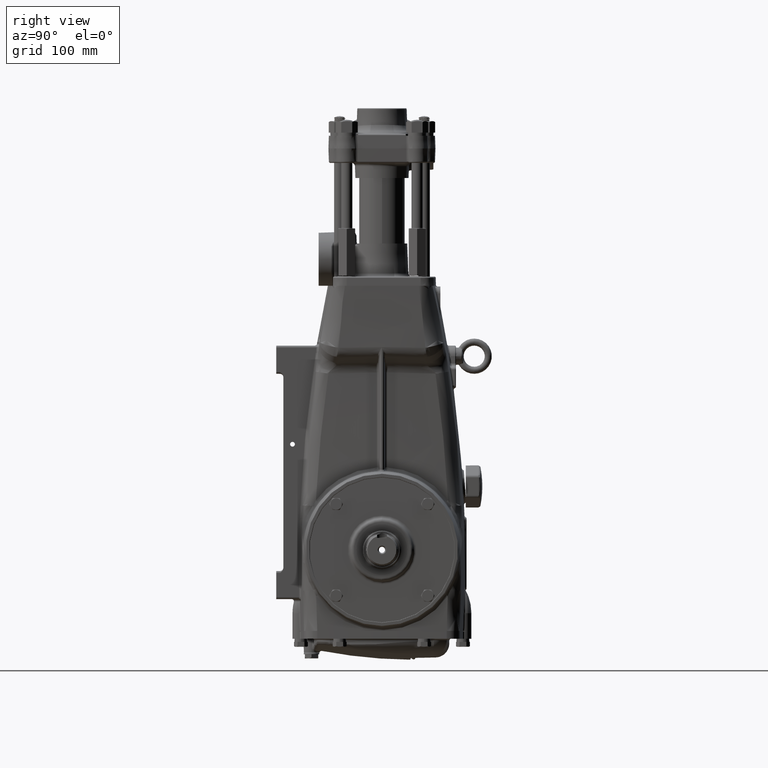
[diagram: clean part render]
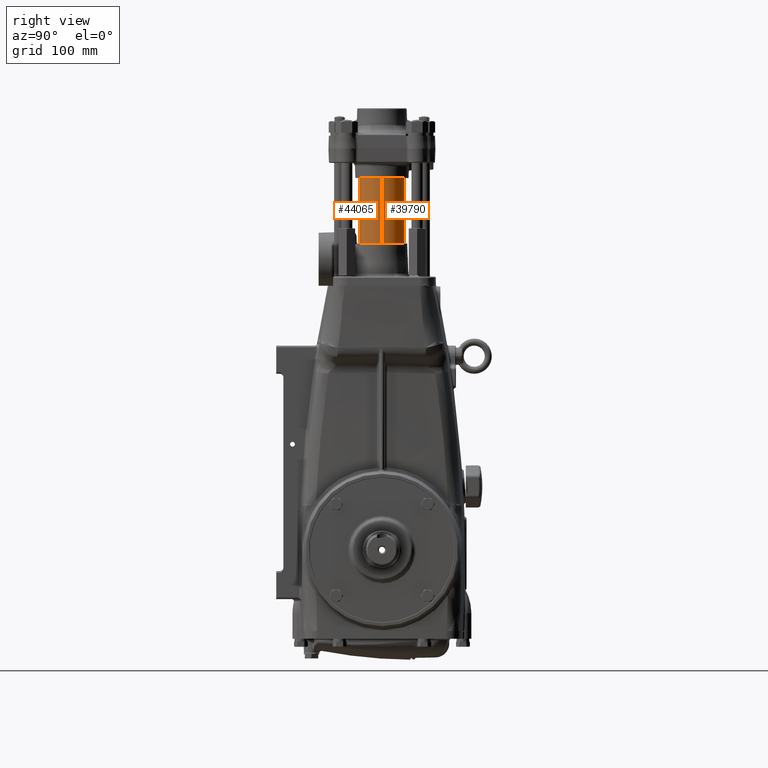
[diagram: same view with one multi-face feature highlighted, each face labeled with its STEP entity id]
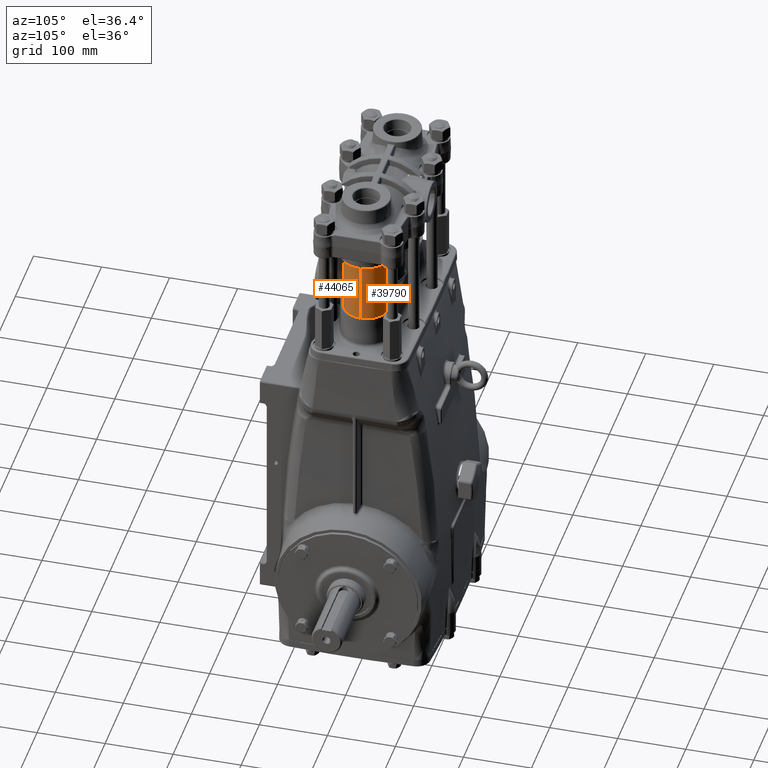
[diagram: same view with one multi-face feature highlighted, each face labeled with its STEP entity id]
A machine part, right view. The highlighted faces form ONE feature: a constant-radius fillet chain: 2 tangent blend faces with common blend radius 32.5 mm. The faces share edges in the B-rep.
A second angle (auxiliary view) of the same feature is appended — it is thin or edge-on in the first view.
Their STEP definitions:
[1] entity #44065 (Cylinder):
#122 = CARTESIAN_POINT ( 'NONE',  ( 2.066929133858270262, 3.743654304219419684E-16, 23.36719875226048515 ) ) ;
#1513 = CIRCLE ( 'NONE', #65875, 1.279527559055118280 ) ;
#1820 = FACE_OUTER_BOUND ( 'NONE', #38703, .T. ) ;
#10456 = CYLINDRICAL_SURFACE ( 'NONE', #32291, 1.279527559055118280 ) ;
#12221 = EDGE_CURVE ( 'NONE', #40531, #40269, #1513, .T. ) ;
#13345 = VERTEX_POINT ( 'NONE', #101584 ) ;
#15720 = EDGE_CURVE ( 'NONE', #40531, #13345, #106144, .T. ) ;
#17967 = CARTESIAN_POINT ( 'NONE',  ( 3.346456692913388320, 2.176684974601743516E-16, 23.36719875226048515 ) ) ;
#24289 = ORIENTED_EDGE ( 'NONE', *, *, #89289, .F. ) ;
#32291 = AXIS2_PLACEMENT_3D ( 'NONE', #17967, #53632, #98048 ) ;
#38264 = AXIS2_PLACEMENT_3D ( 'NONE', #73674, #74238, #64435 ) ;
#38703 = EDGE_LOOP ( 'NONE', ( #39605, #99125, #100555, #24289 ) ) ;
#39336 = CARTESIAN_POINT ( 'NONE',  ( 4.625984251968506378, 2.176684974601743516E-16, 17.02737007874015518 ) ) ;
#39605 = ORIENTED_EDGE ( 'NONE', *, *, #15720, .F. ) ;
#40269 = VERTEX_POINT ( 'NONE', #39336 ) ;
#40531 = VERTEX_POINT ( 'NONE', #100638 ) ;
#41429 = VECTOR ( 'NONE', #67957, 39.37007874015748143 ) ;
#42569 = CARTESIAN_POINT ( 'NONE',  ( 3.346456692913388320, 2.176684974601743516E-16, 17.02737007874015518 ) ) ;
#43170 = EDGE_CURVE ( 'NONE', #40269, #45601, #65686, .T. ) ;
#44065 = ADVANCED_FACE ( 'NONE', ( #1820 ), #10456, .T. ) ;
#45601 = VERTEX_POINT ( 'NONE', #79504 ) ;
#53632 = DIRECTION ( 'NONE',  ( -0.000000000000000000, -0.000000000000000000, 1.000000000000000000 ) ) ;
#59273 = DIRECTION ( 'NONE',  ( -0.000000000000000000, -0.000000000000000000, 1.000000000000000000 ) ) ;
#61718 = DIRECTION ( 'NONE',  ( -0.000000000000000000, -0.000000000000000000, 1.000000000000000000 ) ) ;
#62124 = CIRCLE ( 'NONE', #38264, 1.279527559055118280 ) ;
#64435 = DIRECTION ( 'NONE',  ( 1.000000000000000000, 0.000000000000000000, 0.000000000000000000 ) ) ;
#65686 = LINE ( 'NONE', #111784, #41429 ) ;
#65875 = AXIS2_PLACEMENT_3D ( 'NONE', #42569, #59273, #111773 ) ;
#67957 = DIRECTION ( 'NONE',  ( -0.000000000000000000, -0.000000000000000000, 1.000000000000000000 ) ) ;
#73674 = CARTESIAN_POINT ( 'NONE',  ( 3.346456692913388320, 2.176684974601743516E-16, 20.84626771653543287 ) ) ;
#74238 = DIRECTION ( 'NONE',  ( -0.000000000000000000, -0.000000000000000000, 1.000000000000000000 ) ) ;
#79504 = CARTESIAN_POINT ( 'NONE',  ( 4.625984251968506378, 2.176684974601743516E-16, 20.84626771653543287 ) ) ;
#89289 = EDGE_CURVE ( 'NONE', #13345, #45601, #62124, .T. ) ;
#98048 = DIRECTION ( 'NONE',  ( 1.000000000000000000, 0.000000000000000000, 0.000000000000000000 ) ) ;
#99125 = ORIENTED_EDGE ( 'NONE', *, *, #12221, .T. ) ;
#100555 = ORIENTED_EDGE ( 'NONE', *, *, #43170, .T. ) ;
#100638 = CARTESIAN_POINT ( 'NONE',  ( 2.066929133858270262, 3.743654304219419684E-16, 17.02737007874015518 ) ) ;
#101584 = CARTESIAN_POINT ( 'NONE',  ( 2.066929133858270262, 3.743654304219419684E-16, 20.84626771653543287 ) ) ;
#106144 = LINE ( 'NONE', #122, #106521 ) ;
#106521 = VECTOR ( 'NONE', #61718, 39.37007874015748143 ) ;
#111773 = DIRECTION ( 'NONE',  ( 1.000000000000000000, 0.000000000000000000, 0.000000000000000000 ) ) ;
#111784 = CARTESIAN_POINT ( 'NONE',  ( 4.625984251968506378, 2.176684974601743516E-16, 23.36719875226048515 ) ) ;
[2] entity #39790 (Cylinder):
#122 = CARTESIAN_POINT ( 'NONE',  ( 2.066929133858270262, 3.743654304219419684E-16, 23.36719875226048515 ) ) ;
#12509 = EDGE_LOOP ( 'NONE', ( #103356, #42931, #22006, #84065 ) ) ;
#13345 = VERTEX_POINT ( 'NONE', #101584 ) ;
#13436 = EDGE_CURVE ( 'NONE', #40269, #40531, #54433, .T. ) ;
#15720 = EDGE_CURVE ( 'NONE', #40531, #13345, #106144, .T. ) ;
#22006 = ORIENTED_EDGE ( 'NONE', *, *, #74948, .F. ) ;
#22940 = CIRCLE ( 'NONE', #91062, 1.279527559055118280 ) ;
#33364 = CYLINDRICAL_SURFACE ( 'NONE', #48632, 1.279527559055118280 ) ;
#34492 = DIRECTION ( 'NONE',  ( -0.000000000000000000, -0.000000000000000000, 1.000000000000000000 ) ) ;
#39336 = CARTESIAN_POINT ( 'NONE',  ( 4.625984251968506378, 2.176684974601743516E-16, 17.02737007874015518 ) ) ;
#39790 = ADVANCED_FACE ( 'NONE', ( #112359 ), #33364, .T. ) ;
#40269 = VERTEX_POINT ( 'NONE', #39336 ) ;
#40531 = VERTEX_POINT ( 'NONE', #100638 ) ;
#41429 = VECTOR ( 'NONE', #67957, 39.37007874015748143 ) ;
#42592 = DIRECTION ( 'NONE',  ( 1.000000000000000000, 0.000000000000000000, 0.000000000000000000 ) ) ;
#42931 = ORIENTED_EDGE ( 'NONE', *, *, #15720, .T. ) ;
#43170 = EDGE_CURVE ( 'NONE', #40269, #45601, #65686, .T. ) ;
#45601 = VERTEX_POINT ( 'NONE', #79504 ) ;
#48632 = AXIS2_PLACEMENT_3D ( 'NONE', #68530, #103728, #42592 ) ;
#54433 = CIRCLE ( 'NONE', #56240, 1.279527559055118280 ) ;
#56240 = AXIS2_PLACEMENT_3D ( 'NONE', #78326, #34492, #69679 ) ;
#61718 = DIRECTION ( 'NONE',  ( -0.000000000000000000, -0.000000000000000000, 1.000000000000000000 ) ) ;
#65686 = LINE ( 'NONE', #111784, #41429 ) ;
#67957 = DIRECTION ( 'NONE',  ( -0.000000000000000000, -0.000000000000000000, 1.000000000000000000 ) ) ;
#68530 = CARTESIAN_POINT ( 'NONE',  ( 3.346456692913388320, 2.176684974601743516E-16, 23.36719875226048515 ) ) ;
#69679 = DIRECTION ( 'NONE',  ( 1.000000000000000000, 0.000000000000000000, 0.000000000000000000 ) ) ;
#74948 = EDGE_CURVE ( 'NONE', #45601, #13345, #22940, .T. ) ;
#75845 = CARTESIAN_POINT ( 'NONE',  ( 3.346456692913388320, 2.176684974601743516E-16, 20.84626771653543287 ) ) ;
#78326 = CARTESIAN_POINT ( 'NONE',  ( 3.346456692913388320, 2.176684974601743516E-16, 17.02737007874015518 ) ) ;
#79504 = CARTESIAN_POINT ( 'NONE',  ( 4.625984251968506378, 2.176684974601743516E-16, 20.84626771653543287 ) ) ;
#84065 = ORIENTED_EDGE ( 'NONE', *, *, #43170, .F. ) ;
#91062 = AXIS2_PLACEMENT_3D ( 'NONE', #75845, #111007, #92001 ) ;
#92001 = DIRECTION ( 'NONE',  ( 1.000000000000000000, 0.000000000000000000, 0.000000000000000000 ) ) ;
#100638 = CARTESIAN_POINT ( 'NONE',  ( 2.066929133858270262, 3.743654304219419684E-16, 17.02737007874015518 ) ) ;
#101584 = CARTESIAN_POINT ( 'NONE',  ( 2.066929133858270262, 3.743654304219419684E-16, 20.84626771653543287 ) ) ;
#103356 = ORIENTED_EDGE ( 'NONE', *, *, #13436, .T. ) ;
#103728 = DIRECTION ( 'NONE',  ( -0.000000000000000000, -0.000000000000000000, 1.000000000000000000 ) ) ;
#106144 = LINE ( 'NONE', #122, #106521 ) ;
#106521 = VECTOR ( 'NONE', #61718, 39.37007874015748143 ) ;
#111007 = DIRECTION ( 'NONE',  ( -0.000000000000000000, -0.000000000000000000, 1.000000000000000000 ) ) ;
#111784 = CARTESIAN_POINT ( 'NONE',  ( 4.625984251968506378, 2.176684974601743516E-16, 23.36719875226048515 ) ) ;
#112359 = FACE_OUTER_BOUND ( 'NONE', #12509, .T. ) ;